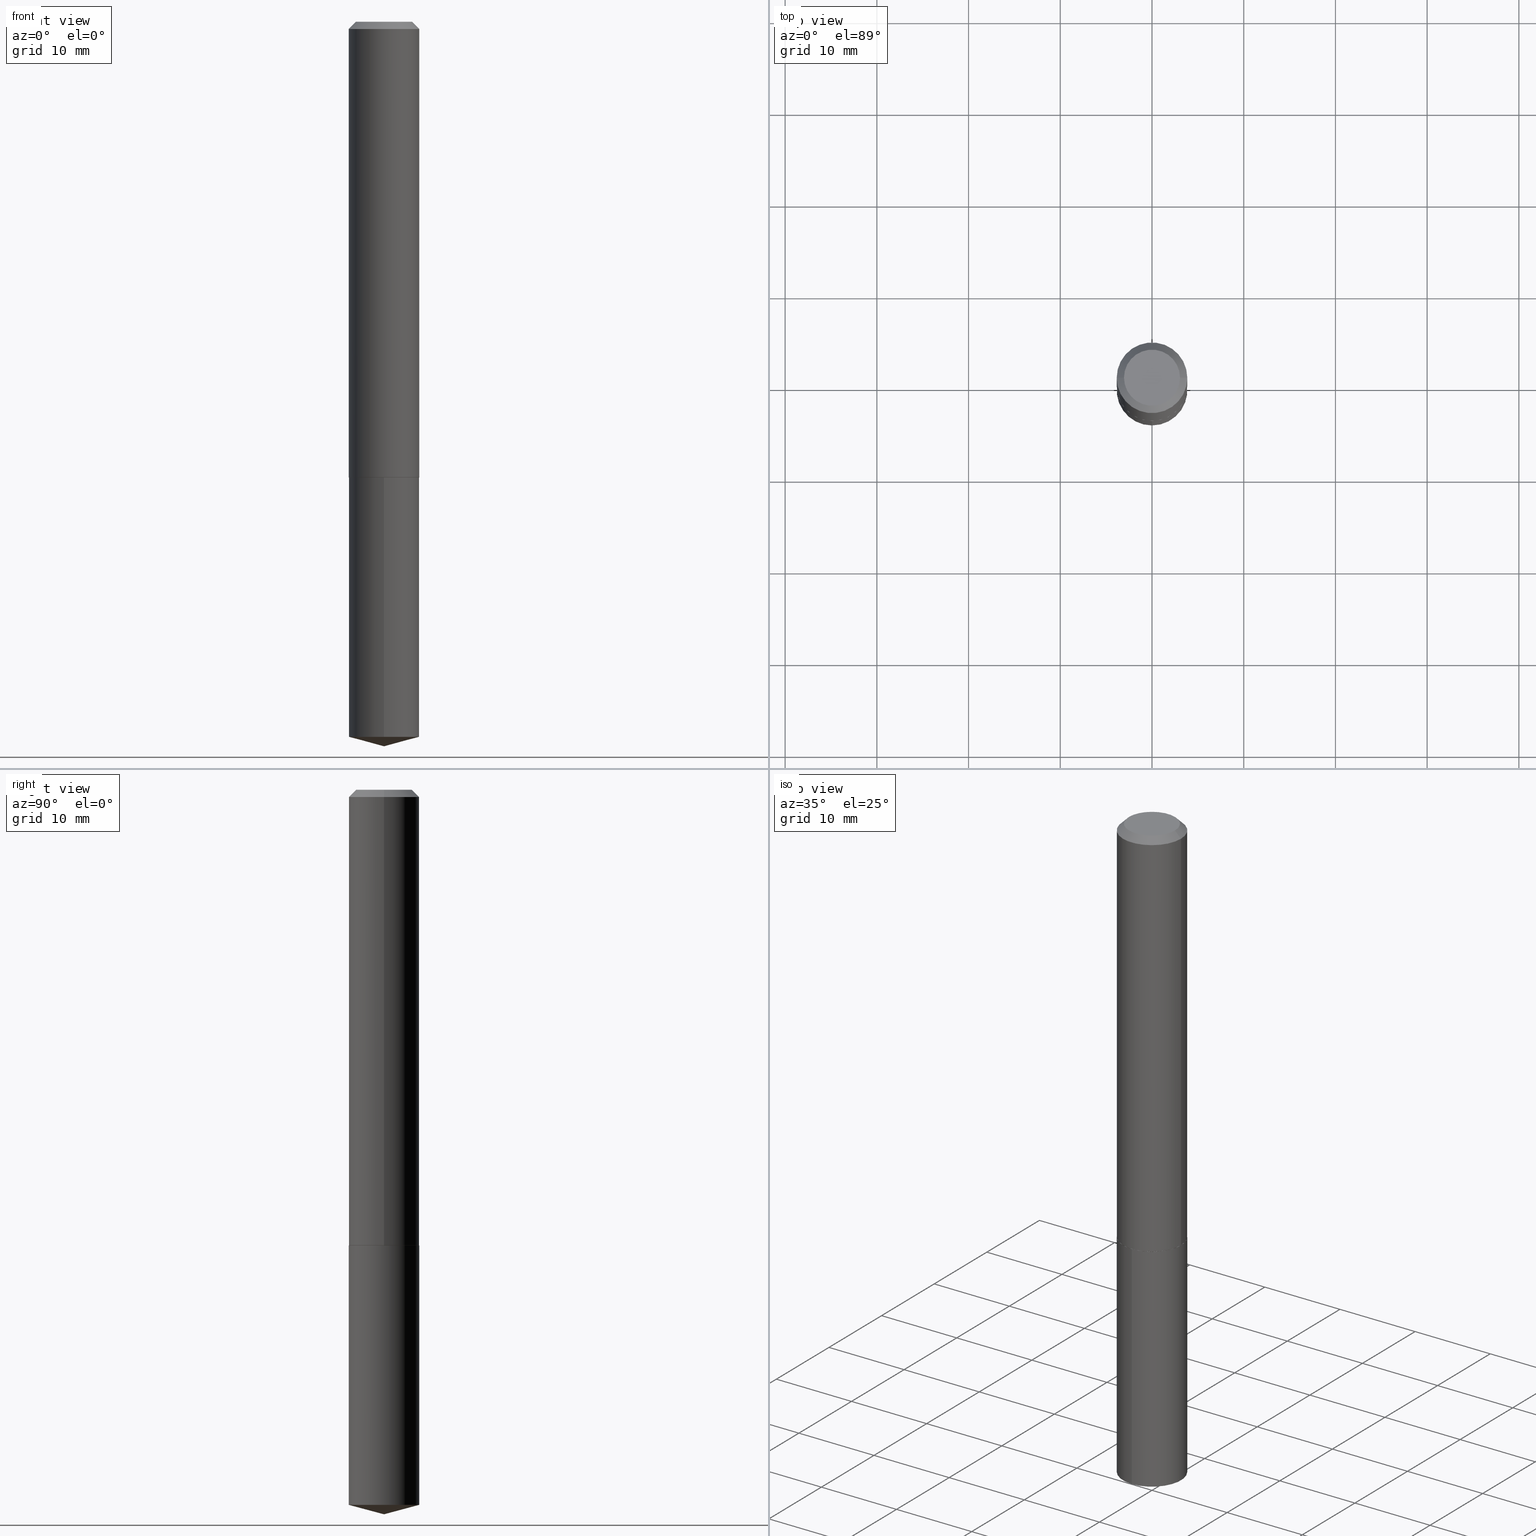
[diagram: canonical four-view strip — front | top / right | iso, engineering-drawing reading convention]
A machine part, canonical four-view strip (front | top / right | iso — engineering-drawing reading convention). The complete STEP part file that produces these views, byte-faithful:
ISO-10303-21;
HEADER;
FILE_DESCRIPTION (( 'STEP AP203' ),
    '1' );
FILE_NAME ('69012.STEP',
    '2024-04-23T14:18:51',
    ( '' ),
    ( '' ),
    'SwSTEP 2.0',
    'SolidWorks 2023',
    '' );
FILE_SCHEMA (( 'CONFIG_CONTROL_DESIGN' ));
ENDSEC;

DATA;
#1 = CARTESIAN_POINT ( 'NONE',  ( 7.642090019328604414E-31, -1.091087918388490513E-16, -0.03125000000000021511 ) ) ;
#2 = SECURITY_CLASSIFICATION ( '', '', #58 ) ;
#3 = CARTESIAN_POINT ( 'NONE',  ( 4.784804266181838428E-29, -6.831432387580498345E-15, -1.956600000000000117 ) ) ;
#4 = DIRECTION ( 'NONE',  ( 1.000000000000000000, -6.982962677686267499E-15, 0.000000000000000000 ) ) ;
#5 = DATE_AND_TIME ( #375, #22 ) ;
#6 = PERSON_AND_ORGANIZATION ( #118, #94 ) ;
#7 = CARTESIAN_POINT ( 'NONE',  ( 1.076827516044506507E-15, 0.1515499999999892211, -3.069592299887064168 ) ) ;
#8 = EDGE_LOOP ( 'NONE', ( #134, #126, #71 ) ) ;
#9 = CARTESIAN_POINT ( 'NONE',  ( -5.839929314523151101E-48, 8.337871319499049968E-34, 2.388061258337324511E-19 ) ) ;
#10 = DIRECTION ( 'NONE',  ( -2.445468806185136877E-29, 3.491481338843145188E-15, 1.000000000000000000 ) ) ;
#11 = CARTESIAN_POINT ( 'NONE',  ( 0.1515500000000001013, -1.058267993803354512E-15, 7.389845903718745173E-30 ) ) ;
#12 = ADVANCED_FACE ( 'NONE', ( #288 ), #204, .T. ) ;
#13 = LINE ( 'NONE', #11, #345 ) ;
#14 = CIRCLE ( 'NONE', #273, 0.1202999999999999764 ) ;
#15 = AXIS2_PLACEMENT_3D ( 'NONE', #98, #123, #188 ) ;
#16 = CARTESIAN_POINT ( 'NONE',  ( 1.076827516044506902E-15, 0.1515499999999931624, -1.956600000000000339 ) ) ;
#17 = APPROVAL_DATE_TIME ( #296, #23 ) ;
#18 = LINE ( 'NONE', #269, #386 ) ;
#19 = ADVANCED_FACE ( 'NONE', ( #351 ), #81, .F. ) ;
#20 = DIRECTION ( 'NONE',  ( -6.982962677686265133E-15, -1.000000000000000000, 3.510303681827617951E-15 ) ) ;
#21 = VECTOR ( 'NONE', #144, 39.37007874015748143 ) ;
#22 = LOCAL_TIME ( 10, 18, 51.00000000000000000, #38 ) ;
#23 = APPROVAL ( #84, 'UNSPECIFIED' ) ;
#24 = CARTESIAN_POINT ( 'NONE',  ( 4.784804266181837868E-29, -6.831432387580497556E-15, -1.956599999999999895 ) ) ;
#25 = DIRECTION ( 'NONE',  ( -2.445468806185136597E-29, 3.491481338843145583E-15, 1.000000000000000000 ) ) ;
#26 = DIRECTION ( 'NONE',  ( 0.7071067811865451302, -7.319954787623248157E-15, -0.7071067811865499042 ) ) ;
#27 = CIRCLE ( 'NONE', #190, 0.1515499999999999903 ) ;
#28 = DIRECTION ( 'NONE',  ( 1.000000000000000000, -6.982962677686266711E-15, 4.876187634201755611E-29 ) ) ;
#29 = PERSON_AND_ORGANIZATION_ROLE ( 'classification_officer' ) ;
#30 = DIRECTION ( 'NONE',  ( 1.000000000000000000, -6.982962677686263555E-15, 0.000000000000000000 ) ) ;
#31 = VERTEX_POINT ( 'NONE', #16 ) ;
#32 = DIRECTION ( 'NONE',  ( -0.7071067811861854180, 7.493145998869046229E-15, 0.7071067811869097275 ) ) ;
#33 = EDGE_CURVE ( 'NONE', #228, #31, #385, .T. ) ;
#34 = PERSON_AND_ORGANIZATION ( #118, #94 ) ;
#35 = AXIS2_PLACEMENT_3D ( 'NONE', #157, #68, #343 ) ;
#36 = APPROVAL_DATE_TIME ( #287, #64 ) ;
#37 = ORIENTED_EDGE ( 'NONE', *, *, #280, .T. ) ;
#38 = COORDINATED_UNIVERSAL_TIME_OFFSET ( 5, 0, .BEHIND. ) ;
#39 = APPROVAL_STATUS ( 'not_yet_approved' ) ;
#40 = ORIENTED_EDGE ( 'NONE', *, *, #156, .T. ) ;
#41 = ORIENTED_EDGE ( 'NONE', *, *, #170, .F. ) ;
#42 = UNCERTAINTY_MEASURE_WITH_UNIT (LENGTH_MEASURE( 1.000000000000000082E-05 ), #164, 'distance_accuracy_value', 'NONE');
#43 = AXIS2_PLACEMENT_3D ( 'NONE', #389, #233, #116 ) ;
#44 = AXIS2_PLACEMENT_3D ( 'NONE', #109, #376, #289 ) ;
#45 = VERTEX_POINT ( 'NONE', #117 ) ;
#46 = ORIENTED_EDGE ( 'NONE', *, *, #47, .T. ) ;
#47 = EDGE_CURVE ( 'NONE', #228, #95, #69, .T. ) ;
#48 = EDGE_LOOP ( 'NONE', ( #318, #281, #255, #168 ) ) ;
#49 = CLOSED_SHELL ( 'NONE', ( #176, #107, #125, #196, #189 ) ) ;
#50 = PLANE ( 'NONE',  #199 ) ;
#51 = COORDINATED_UNIVERSAL_TIME_OFFSET ( 5, 0, .BEHIND. ) ;
#52 = DIRECTION ( 'NONE',  ( -2.445415479178305919E-29, 3.491557706152111532E-15, 1.000000000000000000 ) ) ;
#53 = DIRECTION ( 'NONE',  ( 2.438088387897960049E-29, -3.491481338843145188E-15, -1.000000000000000000 ) ) ;
#54 = CARTESIAN_POINT ( 'NONE',  ( 1.076827516044479489E-15, 0.1515499999999931624, -1.956600000000000339 ) ) ;
#55 = CC_DESIGN_APPROVAL ( #73, ( #2 ) ) ;
#56 = DIRECTION ( 'NONE',  ( -2.445415479178305639E-29, 3.491557706152111532E-15, 1.000000000000000000 ) ) ;
#57 = ADVANCED_FACE ( 'NONE', ( #297 ), #258, .T. ) ;
#58 = SECURITY_CLASSIFICATION_LEVEL ( 'unclassified' ) ;
#59 = LINE ( 'NONE', #179, #216 ) ;
#60 = DIRECTION ( 'NONE',  ( -0.7071067811865451302, 2.468850131082231817E-15, -0.7071067811865499042 ) ) ;
#61 = CONICAL_SURFACE ( 'NONE', #250, 146.9311341562559505, 1.308996938995748760 ) ;
#62 = CC_DESIGN_APPROVAL ( #23, ( #132 ) ) ;
#63 = CARTESIAN_POINT ( 'NONE',  ( 0.1515500000000002123, -7.887954640714432536E-15, -1.956099999999999950 ) ) ;
#64 = APPROVAL ( #39, 'UNSPECIFIED' ) ;
#65 = ADVANCED_BREP_SHAPE_REPRESENTATION ( '69012', ( #276, #146, #149 ), #268 ) ;
#66 = FACE_OUTER_BOUND ( 'NONE', #140, .T. ) ;
#67 = ORIENTED_EDGE ( 'NONE', *, *, #265, .F. ) ;
#68 = DIRECTION ( 'NONE',  ( -2.445468806185136597E-29, 3.491481338843145583E-15, 1.000000000000000000 ) ) ;
#69 = CIRCLE ( 'NONE', #43, 0.1515499999999999625 ) ;
#70 = EDGE_CURVE ( 'NONE', #198, #31, #27, .T. ) ;
#71 = ORIENTED_EDGE ( 'NONE', *, *, #352, .F. ) ;
#72 = ORIENTED_EDGE ( 'NONE', *, *, #377, .T. ) ;
#73 = APPROVAL ( #191, 'UNSPECIFIED' ) ;
#74 = APPLICATION_PROTOCOL_DEFINITION ( 'international standard', 'config_control_design', 1994, #208 ) ;
#75 = ORIENTED_EDGE ( 'NONE', *, *, #322, .T. ) ;
#76 = CIRCLE ( 'NONE', #92, 0.1515500000000002123 ) ;
#77 = PERSON_AND_ORGANIZATION ( #118, #94 ) ;
#78 = CC_DESIGN_SECURITY_CLASSIFICATION ( #2, ( #132 ) ) ;
#79 = ORIENTED_EDGE ( 'NONE', *, *, #322, .F. ) ;
#80 = CARTESIAN_POINT ( 'NONE',  ( 0.1515500000000002123, -7.887954640714432536E-15, -1.956099999999999950 ) ) ;
#81 = PLANE ( 'NONE',  #155 ) ;
#82 = PERSON_AND_ORGANIZATION ( #118, #94 ) ;
#83 = CYLINDRICAL_SURFACE ( 'NONE', #294, 0.1515499999999999903 ) ;
#84 = APPROVAL_STATUS ( 'not_yet_approved' ) ;
#85 = DIRECTION ( 'NONE',  ( -6.982962677686265922E-15, -1.000000000000000000, 3.605210153301568306E-15 ) ) ;
#86 = CARTESIAN_POINT ( 'NONE',  ( 0.1202999999999999764, -9.870675862665198561E-16, 2.388061258401206644E-19 ) ) ;
#87 = AXIS2_PLACEMENT_3D ( 'NONE', #234, #151, #236 ) ;
#88 = FACE_OUTER_BOUND ( 'NONE', #8, .T. ) ;
#89 = CARTESIAN_POINT ( 'NONE',  ( -0.1510500000000005727, -5.755508358040753321E-15, -1.956600000000000117 ) ) ;
#90 = DIRECTION ( 'NONE',  ( -2.445468806185136597E-29, 3.491481338843145583E-15, 1.000000000000000000 ) ) ;
#91 = LINE ( 'NONE', #217, #361 ) ;
#92 = AXIS2_PLACEMENT_3D ( 'NONE', #364, #215, #124 ) ;
#93 = ORIENTED_EDGE ( 'NONE', *, *, #260, .T. ) ;
#94 = ORGANIZATION ( 'UNSPECIFIED', 'UNSPECIFIED', '' ) ;
#95 = VERTEX_POINT ( 'NONE', #115 ) ;
#96 = DIRECTION ( 'NONE',  ( 1.000000000000000000, -6.982962677686265922E-15, 4.876176775795935793E-29 ) ) ;
#97 = DIMENSIONAL_EXPONENTS ( 1.000000000000000000, 0.000000000000000000, 0.000000000000000000, 0.000000000000000000, 0.000000000000000000, 0.000000000000000000, 0.000000000000000000 ) ;
#98 = CARTESIAN_POINT ( 'NONE',  ( 4.783581531778745627E-29, -6.829686646911076052E-15, -1.956099999999999950 ) ) ;
#99 = ORIENTED_EDGE ( 'NONE', *, *, #135, .F. ) ;
#100 = VERTEX_POINT ( 'NONE', #299 ) ;
#101 = APPROVAL_DATE_TIME ( #5, #73 ) ;
#102 =( NAMED_UNIT ( * ) SI_UNIT ( $, .STERADIAN. ) SOLID_ANGLE_UNIT ( ) );
#103 = VERTEX_POINT ( 'NONE', #86 ) ;
#104 = ORIENTED_EDGE ( 'NONE', *, *, #70, .F. ) ;
#105 =( NAMED_UNIT ( * ) PLANE_ANGLE_UNIT ( ) SI_UNIT ( $, .RADIAN. ) );
#106 = DESIGN_CONTEXT ( 'detailed design', #208, 'design' ) ;
#107 = ADVANCED_FACE ( 'NONE', ( #88 ), #61, .T. ) ;
#108 = AXIS2_PLACEMENT_3D ( 'NONE', #329, #232, #357 ) ;
#109 = CARTESIAN_POINT ( 'NONE',  ( 7.506532864531928318E-29, -1.071750922913913919E-14, -3.069592299887063724 ) ) ;
#110 = EDGE_LOOP ( 'NONE', ( #317, #324, #72, #142 ) ) ;
#111 = DIRECTION ( 'NONE',  ( 1.000000000000000000, -6.982962677686271444E-15, 0.000000000000000000 ) ) ;
#112 = CC_DESIGN_DATE_AND_TIME_ASSIGNMENT ( #261, #382, ( #249 ) ) ;
#113 = CARTESIAN_POINT ( 'NONE',  ( -0.1515500000000001013, 1.076827516044432551E-15, -7.454646129281315317E-30 ) ) ;
#114 = CIRCLE ( 'NONE', #243, 0.1515500000000002123 ) ;
#115 = CARTESIAN_POINT ( 'NONE',  ( -1.058267993803278190E-15, -0.1515500000000106762, -3.069592299887063280 ) ) ;
#116 = DIRECTION ( 'NONE',  ( -6.982962677686265922E-15, -1.000000000000000000, 3.605210153301569095E-15 ) ) ;
#117 = CARTESIAN_POINT ( 'NONE',  ( -0.1515499999999999903, -2.392570203330529433E-15, -0.03125000000000021511 ) ) ;
#118 = PERSON ( 'UNSPECIFIED', 'UNSPECIFIED', 'UNSPECIFIED', ('UNSPECIFIED'), ('UNSPECIFIED'), ('UNSPECIFIED') ) ;
#119 = PERSON_AND_ORGANIZATION ( #118, #94 ) ;
#120 = CLOSED_SHELL ( 'NONE', ( #245, #238, #12, #235, #270, #163, #57, #19 ) ) ;
#121 = DIRECTION ( 'NONE',  ( -6.982962677686265922E-15, -1.000000000000000000, 3.605210153301568306E-15 ) ) ;
#122 = CIRCLE ( 'NONE', #387, 0.1202999999999999764 ) ;
#123 = DIRECTION ( 'NONE',  ( -2.445468806185136597E-29, 3.491481338843145583E-15, 1.000000000000000000 ) ) ;
#124 = DIRECTION ( 'NONE',  ( 1.000000000000000000, -6.982962677686271444E-15, 0.000000000000000000 ) ) ;
#125 = ADVANCED_FACE ( 'NONE', ( #211 ), #285, .T. ) ;
#126 = ORIENTED_EDGE ( 'NONE', *, *, #331, .T. ) ;
#127 = ORIENTED_EDGE ( 'NONE', *, *, #348, .F. ) ;
#128 = PERSON_AND_ORGANIZATION_ROLE ( 'design_owner' ) ;
#129 = FACE_OUTER_BOUND ( 'NONE', #110, .T. ) ;
#130 = CONICAL_SURFACE ( 'NONE', #313, 0.1515499999999999903, 0.7853981633974449483 ) ;
#131 = EDGE_LOOP ( 'NONE', ( #159, #293 ) ) ;
#132 = PRODUCT_DEFINITION_FORMATION_WITH_SPECIFIED_SOURCE ( 'ANY', '', #366, .NOT_KNOWN. ) ;
#133 = CARTESIAN_POINT ( 'NONE',  ( -1.058267993803305800E-15, -0.1515500000000068181, -1.956599999999999229 ) ) ;
#134 = ORIENTED_EDGE ( 'NONE', *, *, #260, .F. ) ;
#135 = EDGE_CURVE ( 'NONE', #195, #45, #209, .T. ) ;
#136 = EDGE_LOOP ( 'NONE', ( #225, #93, #169 ) ) ;
#137 = ORIENTED_EDGE ( 'NONE', *, *, #290, .T. ) ;
#138 = CC_DESIGN_PERSON_AND_ORGANIZATION_ASSIGNMENT ( #6, #128, ( #366 ) ) ;
#139 = EDGE_LOOP ( 'NONE', ( #370, #379, #75, #350 ) ) ;
#140 = EDGE_LOOP ( 'NONE', ( #242, #219, #79, #185 ) ) ;
#141 = VECTOR ( 'NONE', #371, 39.37007874015748854 ) ;
#142 = ORIENTED_EDGE ( 'NONE', *, *, #201, .F. ) ;
#143 = EDGE_CURVE ( 'NONE', #254, #195, #114, .T. ) ;
#144 = DIRECTION ( 'NONE',  ( -2.445415479178305639E-29, 3.491557706152111532E-15, 1.000000000000000000 ) ) ;
#145 = PERSON_AND_ORGANIZATION ( #118, #94 ) ;
#146 = MANIFOLD_SOLID_BREP ( 'Body-Move/Copy2[2]', #120 ) ;
#147 = CC_DESIGN_PERSON_AND_ORGANIZATION_ASSIGNMENT ( #284, #29, ( #2 ) ) ;
#148 = CARTESIAN_POINT ( 'NONE',  ( -0.1515500000000002123, -5.752859130866642909E-15, -1.956099999999999950 ) ) ;
#149 = AXIS2_PLACEMENT_3D ( 'NONE', #390, #154, #274 ) ;
#150 = CARTESIAN_POINT ( 'NONE',  ( -8.867036440468791964E-28, 1.266036084596146905E-13, 36.25987874015748247 ) ) ;
#151 = DIRECTION ( 'NONE',  ( 2.445468806185136597E-29, -3.491481338843145583E-15, -1.000000000000000000 ) ) ;
#152 = APPLICATION_PROTOCOL_DEFINITION ( 'international standard', 'config_control_design', 1994, #311 ) ;
#153 = CARTESIAN_POINT ( 'NONE',  ( 7.642090019328604414E-31, -1.091087918388490513E-16, -0.03125000000000021511 ) ) ;
#154 = DIRECTION ( 'NONE',  ( 0.000000000000000000, 0.000000000000000000, 1.000000000000000000 ) ) ;
#155 = AXIS2_PLACEMENT_3D ( 'NONE', #202, #53, #358 ) ;
#156 = EDGE_CURVE ( 'NONE', #95, #198, #18, .T. ) ;
#157 = CARTESIAN_POINT ( 'NONE',  ( 7.642090019328604414E-31, -1.091087918388490513E-16, -0.03125000000000021511 ) ) ;
#158 = CARTESIAN_POINT ( 'NONE',  ( 4.784804266181837868E-29, -6.831432387580497556E-15, -1.956599999999999895 ) ) ;
#159 = ORIENTED_EDGE ( 'NONE', *, *, #70, .T. ) ;
#160 = DIRECTION ( 'NONE',  ( -2.438088387897960049E-29, 3.491481338843145188E-15, 1.000000000000000000 ) ) ;
#161 = AXIS2_PLACEMENT_3D ( 'NONE', #335, #160, #96 ) ;
#162 = APPROVAL_ROLE ( '' ) ;
#163 = ADVANCED_FACE ( 'NONE', ( #384 ), #178, .T. ) ;
#164 =( CONVERSION_BASED_UNIT ( 'INCH', #192 ) LENGTH_UNIT ( ) NAMED_UNIT ( #97 ) );
#165 = ORIENTED_EDGE ( 'NONE', *, *, #231, .T. ) ;
#166 = CC_DESIGN_APPROVAL ( #64, ( #249 ) ) ;
#167 = ORIENTED_EDGE ( 'NONE', *, *, #352, .T. ) ;
#168 = ORIENTED_EDGE ( 'NONE', *, *, #377, .F. ) ;
#169 = ORIENTED_EDGE ( 'NONE', *, *, #47, .F. ) ;
#170 = EDGE_CURVE ( 'NONE', #100, #323, #181, .T. ) ;
#171 = VECTOR ( 'NONE', #248, 39.37007874015748143 ) ;
#172 = CARTESIAN_POINT ( 'NONE',  ( 4.784804266181837868E-29, -6.831432387580497556E-15, -1.956599999999999895 ) ) ;
#173 = CALENDAR_DATE ( 2024, 23, 4 ) ;
#174 = DIRECTION ( 'NONE',  ( -6.982962677686265133E-15, -1.000000000000000000, 3.510303681827617951E-15 ) ) ;
#175 = AXIS2_PLACEMENT_3D ( 'NONE', #153, #182, #4 ) ;
#176 = ADVANCED_FACE ( 'NONE', ( #388 ), #83, .T. ) ;
#177 = DIRECTION ( 'NONE',  ( -2.445415479178305919E-29, 3.491557706152111532E-15, 1.000000000000000000 ) ) ;
#178 = CYLINDRICAL_SURFACE ( 'NONE', #108, 0.1515500000000001013 ) ;
#179 = CARTESIAN_POINT ( 'NONE',  ( 0.1515499999999999903, -1.148817263401124587E-15, -0.03125000000000021511 ) ) ;
#180 = CC_DESIGN_PERSON_AND_ORGANIZATION_ASSIGNMENT ( #77, #221, ( #249 ) ) ;
#181 = CIRCLE ( 'NONE', #337, 0.1510500000000005727 ) ;
#182 = DIRECTION ( 'NONE',  ( -2.445468806185136597E-29, 3.491481338843145583E-15, 1.000000000000000000 ) ) ;
#183 = ORIENTED_EDGE ( 'NONE', *, *, #207, .F. ) ;
#184 = LINE ( 'NONE', #365, #141 ) ;
#185 = ORIENTED_EDGE ( 'NONE', *, *, #373, .F. ) ;
#186 = CALENDAR_DATE ( 2024, 23, 4 ) ;
#187 = DIRECTION ( 'NONE',  ( 2.445468806185136597E-29, -3.491481338843145583E-15, -1.000000000000000000 ) ) ;
#188 = DIRECTION ( 'NONE',  ( 1.000000000000000000, -6.982962677686271444E-15, 0.000000000000000000 ) ) ;
#189 = ADVANCED_FACE ( 'NONE', ( #325 ), #50, .F. ) ;
#190 = AXIS2_PLACEMENT_3D ( 'NONE', #383, #52, #360 ) ;
#191 = APPROVAL_STATUS ( 'not_yet_approved' ) ;
#192 = LENGTH_MEASURE_WITH_UNIT ( LENGTH_MEASURE( 0.02539999999999999897 ), #253 );
#193 = VERTEX_POINT ( 'NONE', #327 ) ;
#194 = COORDINATED_UNIVERSAL_TIME_OFFSET ( 5, 0, .BEHIND. ) ;
#195 = VERTEX_POINT ( 'NONE', #148 ) ;
#196 = ADVANCED_FACE ( 'NONE', ( #266 ), #328, .T. ) ;
#197 = CALENDAR_DATE ( 2024, 23, 4 ) ;
#198 = VERTEX_POINT ( 'NONE', #133 ) ;
#199 = AXIS2_PLACEMENT_3D ( 'NONE', #172, #206, #295 ) ;
#200 = LOCAL_TIME ( 10, 18, 51.00000000000000000, #292 ) ;
#201 = EDGE_CURVE ( 'NONE', #195, #254, #76, .T. ) ;
#202 = CARTESIAN_POINT ( 'NONE',  ( -2.919964657261575550E-48, 4.168935659749524984E-34, 1.194030629168662255E-19 ) ) ;
#203 = DIRECTION ( 'NONE',  ( -2.445415479178305919E-29, 3.491557706152111532E-15, 1.000000000000000000 ) ) ;
#204 = CONICAL_SURFACE ( 'NONE', #306, 0.1515500000000002123, 0.7853981633969361331 ) ;
#205 = APPROVAL_ROLE ( '' ) ;
#206 = DIRECTION ( 'NONE',  ( 2.445415479178305919E-29, -3.491557706152111532E-15, -1.000000000000000000 ) ) ;
#207 = EDGE_CURVE ( 'NONE', #31, #198, #330, .T. ) ;
#208 = APPLICATION_CONTEXT ( 'configuration controlled 3d designs of mechanical parts and assemblies' ) ;
#209 = LINE ( 'NONE', #113, #356 ) ;
#210 = PRODUCT_RELATED_PRODUCT_CATEGORY ( 'detail', '', ( #366 ) ) ;
#211 = FACE_OUTER_BOUND ( 'NONE', #136, .T. ) ;
#212 = LINE ( 'NONE', #333, #314 ) ;
#213 = EDGE_CURVE ( 'NONE', #323, #100, #319, .T. ) ;
#214 = CARTESIAN_POINT ( 'NONE',  ( 0.1515499999999999903, -1.167376785642202627E-15, -0.03125000000000021511 ) ) ;
#215 = DIRECTION ( 'NONE',  ( -2.445468806185136597E-29, 3.491481338843145583E-15, 1.000000000000000000 ) ) ;
#216 = VECTOR ( 'NONE', #26, 39.37007874015748143 ) ;
#217 = CARTESIAN_POINT ( 'NONE',  ( -0.1515499999999999903, 9.491592019645046225E-16, -0.03125000000000021511 ) ) ;
#218 = EDGE_LOOP ( 'NONE', ( #167, #334, #104, #346 ) ) ;
#219 = ORIENTED_EDGE ( 'NONE', *, *, #135, .T. ) ;
#220 = LINE ( 'NONE', #283, #320 ) ;
#221 = PERSON_AND_ORGANIZATION_ROLE ( 'creator' ) ;
#222 = CC_DESIGN_DATE_AND_TIME_ASSIGNMENT ( #342, #312, ( #2 ) ) ;
#223 = AXIS2_PLACEMENT_3D ( 'NONE', #158, #275, #241 ) ;
#224 = EDGE_LOOP ( 'NONE', ( #127, #67, #37, #165 ) ) ;
#225 = ORIENTED_EDGE ( 'NONE', *, *, #331, .F. ) ;
#226 = EDGE_LOOP ( 'NONE', ( #41, #321 ) ) ;
#227 = PERSON_AND_ORGANIZATION ( #118, #94 ) ;
#228 = VERTEX_POINT ( 'NONE', #7 ) ;
#229 = APPROVAL_PERSON_ORGANIZATION ( #227, #64, #252 ) ;
#230 = DIRECTION ( 'NONE',  ( 1.000000000000000000, -6.982962677686271444E-15, 0.000000000000000000 ) ) ;
#231 = EDGE_CURVE ( 'NONE', #45, #347, #367, .T. ) ;
#232 = DIRECTION ( 'NONE',  ( -2.445468806185136597E-29, 3.491481338843145583E-15, 1.000000000000000000 ) ) ;
#233 = DIRECTION ( 'NONE',  ( -2.445415479178305919E-29, 3.491557706152111532E-15, 1.000000000000000000 ) ) ;
#234 = CARTESIAN_POINT ( 'NONE',  ( 7.642090019328604414E-31, -1.091087918388490513E-16, -0.03125000000000021511 ) ) ;
#235 = ADVANCED_FACE ( 'NONE', ( #369 ), #272, .F. ) ;
#236 = DIRECTION ( 'NONE',  ( -1.000000000000000000, 6.982962677686267499E-15, 0.000000000000000000 ) ) ;
#237 = PERSON_AND_ORGANIZATION_ROLE ( 'design_supplier' ) ;
#238 = ADVANCED_FACE ( 'NONE', ( #66 ), #277, .T. ) ;
#239 = DIRECTION ( 'NONE',  ( -2.445468806185136597E-29, 3.491481338843145583E-15, 1.000000000000000000 ) ) ;
#240 = DIRECTION ( 'NONE',  ( 6.863315791527694259E-15, 0.9659258262890696445, 0.2588190451025158545 ) ) ;
#241 = DIRECTION ( 'NONE',  ( -6.982962677686265922E-15, -1.000000000000000000, 3.605210153301568306E-15 ) ) ;
#242 = ORIENTED_EDGE ( 'NONE', *, *, #143, .T. ) ;
#243 = AXIS2_PLACEMENT_3D ( 'NONE', #263, #25, #111 ) ;
#244 = CARTESIAN_POINT ( 'NONE',  ( 0.000000000000000000, 0.000000000000000000, 0.000000000000000000 ) ) ;
#245 = ADVANCED_FACE ( 'NONE', ( #247 ), #130, .T. ) ;
#246 = ORIENTED_EDGE ( 'NONE', *, *, #373, .T. ) ;
#247 = FACE_OUTER_BOUND ( 'NONE', #139, .T. ) ;
#248 = DIRECTION ( 'NONE',  ( 0.7071067811861854180, -2.468850131078463428E-15, 0.7071067811869097275 ) ) ;
#249 = PRODUCT_DEFINITION ( 'UNKNOWN', '', #132, #106 ) ;
#250 = AXIS2_PLACEMENT_3D ( 'NONE', #262, #177, #20 ) ;
#251 = LOCAL_TIME ( 10, 18, 51.00000000000000000, #278 ) ;
#252 = APPROVAL_ROLE ( '' ) ;
#253 =( LENGTH_UNIT ( ) NAMED_UNIT ( * ) SI_UNIT ( $, .METRE. ) );
#254 = VERTEX_POINT ( 'NONE', #63 ) ;
#255 = ORIENTED_EDGE ( 'NONE', *, *, #143, .F. ) ;
#256 = LINE ( 'NONE', #80, #171 ) ;
#257 = CARTESIAN_POINT ( 'NONE',  ( 4.783581531778745627E-29, -6.829686646911076052E-15, -1.956099999999999950 ) ) ;
#258 = CONICAL_SURFACE ( 'NONE', #87, 0.1515499999999999903, 0.7853981633974449483 ) ;
#259 = CIRCLE ( 'NONE', #44, 0.1515499999999999625 ) ;
#260 = EDGE_CURVE ( 'NONE', #193, #95, #184, .T. ) ;
#261 = DATE_AND_TIME ( #354, #200 ) ;
#262 = CARTESIAN_POINT ( 'NONE',  ( -8.867036440468791964E-28, 1.266036084596146905E-13, 36.25987874015748247 ) ) ;
#263 = CARTESIAN_POINT ( 'NONE',  ( 4.783581531778745627E-29, -6.829686646911076052E-15, -1.956099999999999950 ) ) ;
#264 = PERSON_AND_ORGANIZATION_ROLE ( 'creator' ) ;
#265 = EDGE_CURVE ( 'NONE', #316, #103, #14, .T. ) ;
#266 = FACE_OUTER_BOUND ( 'NONE', #309, .T. ) ;
#267 = AXIS2_PLACEMENT_3D ( 'NONE', #341, #307, #121 ) ;
#268 =( GEOMETRIC_REPRESENTATION_CONTEXT ( 3 ) GLOBAL_UNCERTAINTY_ASSIGNED_CONTEXT ( ( #42 ) ) GLOBAL_UNIT_ASSIGNED_CONTEXT ( ( #164, #105, #102 ) ) REPRESENTATION_CONTEXT ( 'NONE', 'WORKASPACE' ) );
#269 = CARTESIAN_POINT ( 'NONE',  ( -1.058267993803305800E-15, -0.1515500000000068181, -1.956599999999999229 ) ) ;
#270 = ADVANCED_FACE ( 'NONE', ( #129 ), #338, .T. ) ;
#271 = MECHANICAL_CONTEXT ( 'NONE', #311, 'mechanical' ) ;
#272 = PLANE ( 'NONE',  #161 ) ;
#273 = AXIS2_PLACEMENT_3D ( 'NONE', #308, #239, #279 ) ;
#274 = DIRECTION ( 'NONE',  ( 1.000000000000000000, 0.000000000000000000, 0.000000000000000000 ) ) ;
#275 = DIRECTION ( 'NONE',  ( -2.445415479178305919E-29, 3.491557706152111532E-15, 1.000000000000000000 ) ) ;
#276 = MANIFOLD_SOLID_BREP ( 'Body-Move/Copy2[1]', #49 ) ;
#277 = CYLINDRICAL_SURFACE ( 'NONE', #380, 0.1515500000000001013 ) ;
#278 = COORDINATED_UNIVERSAL_TIME_OFFSET ( 5, 0, .BEHIND. ) ;
#279 = DIRECTION ( 'NONE',  ( 1.000000000000000000, -6.982962677686266711E-15, 4.876187634201755611E-29 ) ) ;
#280 = EDGE_CURVE ( 'NONE', #316, #45, #91, .T. ) ;
#281 = ORIENTED_EDGE ( 'NONE', *, *, #304, .T. ) ;
#282 = LOCAL_TIME ( 10, 18, 51.00000000000000000, #51 ) ;
#283 = CARTESIAN_POINT ( 'NONE',  ( -0.1515500000000002123, -5.752859130866642909E-15, -1.956099999999999950 ) ) ;
#284 = PERSON_AND_ORGANIZATION ( #118, #94 ) ;
#285 = CONICAL_SURFACE ( 'NONE', #344, 146.9311341562559505, 1.308996938995748760 ) ;
#286 = ORIENTED_EDGE ( 'NONE', *, *, #231, .F. ) ;
#287 = DATE_AND_TIME ( #197, #368 ) ;
#288 = FACE_OUTER_BOUND ( 'NONE', #48, .T. ) ;
#289 = DIRECTION ( 'NONE',  ( -6.982962677686265922E-15, -1.000000000000000000, 3.605210153301569095E-15 ) ) ;
#290 = EDGE_CURVE ( 'NONE', #103, #316, #122, .T. ) ;
#291 = ORIENTED_EDGE ( 'NONE', *, *, #33, .F. ) ;
#292 = COORDINATED_UNIVERSAL_TIME_OFFSET ( 5, 0, .BEHIND. ) ;
#293 = ORIENTED_EDGE ( 'NONE', *, *, #207, .T. ) ;
#294 = AXIS2_PLACEMENT_3D ( 'NONE', #24, #203, #85 ) ;
#295 = DIRECTION ( 'NONE',  ( 6.982962677686265922E-15, 1.000000000000000000, -3.491557706152111532E-15 ) ) ;
#296 = DATE_AND_TIME ( #173, #282 ) ;
#297 = FACE_OUTER_BOUND ( 'NONE', #224, .T. ) ;
#298 = CC_DESIGN_PERSON_AND_ORGANIZATION_ASSIGNMENT ( #119, #237, ( #132 ) ) ;
#299 = CARTESIAN_POINT ( 'NONE',  ( 0.1510500000000005727, -7.886208900045013399E-15, -1.956600000000000117 ) ) ;
#300 = AXIS2_PLACEMENT_3D ( 'NONE', #3, #90, #30 ) ;
#301 = CIRCLE ( 'NONE', #35, 0.1515499999999999903 ) ;
#302 = DIRECTION ( 'NONE',  ( 1.000000000000000000, -6.982962677686263555E-15, 0.000000000000000000 ) ) ;
#303 = CARTESIAN_POINT ( 'NONE',  ( 4.784804266181838428E-29, -6.831432387580498345E-15, -1.956600000000000117 ) ) ;
#304 = EDGE_CURVE ( 'NONE', #323, #195, #220, .T. ) ;
#305 = DIRECTION ( 'NONE',  ( -2.445468806185136597E-29, 3.491481338843145583E-15, 1.000000000000000000 ) ) ;
#306 = AXIS2_PLACEMENT_3D ( 'NONE', #257, #381, #230 ) ;
#307 = DIRECTION ( 'NONE',  ( -2.445415479178305919E-29, 3.491557706152111532E-15, 1.000000000000000000 ) ) ;
#308 = CARTESIAN_POINT ( 'NONE',  ( -5.839929314523151101E-48, 8.337871319499049968E-34, 2.388061258337324511E-19 ) ) ;
#309 = EDGE_LOOP ( 'NONE', ( #291, #46, #40, #183 ) ) ;
#310 = CARTESIAN_POINT ( 'NONE',  ( -0.1202999999999999764, 8.946048060450810583E-16, 2.388061258276670717E-19 ) ) ;
#311 = APPLICATION_CONTEXT ( 'configuration controlled 3d designs of mechanical parts and assemblies' ) ;
#312 = DATE_TIME_ROLE ( 'classification_date' ) ;
#313 = AXIS2_PLACEMENT_3D ( 'NONE', #1, #187, #339 ) ;
#314 = VECTOR ( 'NONE', #240, 39.37007874015748854 ) ;
#315 = DIRECTION ( 'NONE',  ( 1.000000000000000000, -6.982962677686267499E-15, 4.876176775795935232E-29 ) ) ;
#316 = VERTEX_POINT ( 'NONE', #310 ) ;
#317 = ORIENTED_EDGE ( 'NONE', *, *, #304, .F. ) ;
#318 = ORIENTED_EDGE ( 'NONE', *, *, #170, .T. ) ;
#319 = CIRCLE ( 'NONE', #300, 0.1510500000000005727 ) ;
#320 = VECTOR ( 'NONE', #32, 39.37007874015748143 ) ;
#321 = ORIENTED_EDGE ( 'NONE', *, *, #213, .F. ) ;
#322 = EDGE_CURVE ( 'NONE', #347, #45, #301, .T. ) ;
#323 = VERTEX_POINT ( 'NONE', #89 ) ;
#324 = ORIENTED_EDGE ( 'NONE', *, *, #213, .T. ) ;
#325 = FACE_OUTER_BOUND ( 'NONE', #131, .T. ) ;
#326 = APPROVAL_PERSON_ORGANIZATION ( #34, #73, #162 ) ;
#327 = CARTESIAN_POINT ( 'NONE',  ( 7.605731223340367812E-29, -1.085944277767429911E-14, -3.110199999999999854 ) ) ;
#328 = CYLINDRICAL_SURFACE ( 'NONE', #267, 0.1515499999999999903 ) ;
#329 = CARTESIAN_POINT ( 'NONE',  ( 0.000000000000000000, 0.000000000000000000, 0.000000000000000000 ) ) ;
#330 = CIRCLE ( 'NONE', #223, 0.1515499999999999903 ) ;
#331 = EDGE_CURVE ( 'NONE', #193, #228, #212, .T. ) ;
#332 = DIRECTION ( 'NONE',  ( -2.445415479178305919E-29, 3.491557706152111532E-15, 1.000000000000000000 ) ) ;
#333 = CARTESIAN_POINT ( 'NONE',  ( 7.605941732454133182E-29, -1.085914393712085339E-14, -3.110199999999999854 ) ) ;
#334 = ORIENTED_EDGE ( 'NONE', *, *, #33, .T. ) ;
#335 = CARTESIAN_POINT ( 'NONE',  ( 4.784804266181838428E-29, -6.831432387580498345E-15, -1.956600000000000117 ) ) ;
#336 = ORIENTED_EDGE ( 'NONE', *, *, #201, .T. ) ;
#337 = AXIS2_PLACEMENT_3D ( 'NONE', #303, #353, #302 ) ;
#338 = CONICAL_SURFACE ( 'NONE', #15, 0.1515500000000002123, 0.7853981633969361331 ) ;
#339 = DIRECTION ( 'NONE',  ( -1.000000000000000000, 6.982962677686267499E-15, 0.000000000000000000 ) ) ;
#340 = EDGE_LOOP ( 'NONE', ( #99, #336, #246, #286 ) ) ;
#341 = CARTESIAN_POINT ( 'NONE',  ( 4.784804266181837868E-29, -6.831432387580497556E-15, -1.956599999999999895 ) ) ;
#342 = DATE_AND_TIME ( #186, #251 ) ;
#343 = DIRECTION ( 'NONE',  ( 1.000000000000000000, -6.982962677686267499E-15, 0.000000000000000000 ) ) ;
#344 = AXIS2_PLACEMENT_3D ( 'NONE', #150, #332, #174 ) ;
#345 = VECTOR ( 'NONE', #10, 39.37007874015748143 ) ;
#346 = ORIENTED_EDGE ( 'NONE', *, *, #156, .F. ) ;
#347 = VERTEX_POINT ( 'NONE', #214 ) ;
#348 = EDGE_CURVE ( 'NONE', #103, #347, #59, .T. ) ;
#349 = APPROVAL_PERSON_ORGANIZATION ( #82, #23, #205 ) ;
#350 = ORIENTED_EDGE ( 'NONE', *, *, #280, .F. ) ;
#351 = FACE_OUTER_BOUND ( 'NONE', #378, .T. ) ;
#352 = EDGE_CURVE ( 'NONE', #95, #228, #259, .T. ) ;
#353 = DIRECTION ( 'NONE',  ( -2.445468806185136597E-29, 3.491481338843145583E-15, 1.000000000000000000 ) ) ;
#354 = CALENDAR_DATE ( 2024, 23, 4 ) ;
#355 = DIRECTION ( 'NONE',  ( -2.445468806185136877E-29, 3.491481338843145188E-15, 1.000000000000000000 ) ) ;
#356 = VECTOR ( 'NONE', #355, 39.37007874015748143 ) ;
#357 = DIRECTION ( 'NONE',  ( 1.000000000000000000, -6.982962677686267499E-15, 4.876176775795935232E-29 ) ) ;
#358 = DIRECTION ( 'NONE',  ( -1.000000000000000000, 6.982962677686265922E-15, -4.876176775795935793E-29 ) ) ;
#359 = PRODUCT_DEFINITION_SHAPE ( 'NONE', 'NONE',  #249 ) ;
#360 = DIRECTION ( 'NONE',  ( -6.982962677686265922E-15, -1.000000000000000000, 3.605210153301568306E-15 ) ) ;
#361 = VECTOR ( 'NONE', #60, 39.37007874015748143 ) ;
#362 = CC_DESIGN_PERSON_AND_ORGANIZATION_ASSIGNMENT ( #145, #264, ( #132 ) ) ;
#363 = DIRECTION ( 'NONE',  ( -2.445468806185136597E-29, 3.491481338843145583E-15, 1.000000000000000000 ) ) ;
#364 = CARTESIAN_POINT ( 'NONE',  ( 4.783581531778745627E-29, -6.829686646911076052E-15, -1.956099999999999950 ) ) ;
#365 = CARTESIAN_POINT ( 'NONE',  ( 7.605731223340367812E-29, -1.085944277767429911E-14, -3.110199999999999854 ) ) ;
#366 = PRODUCT ( '69012', '69012', '', ( #271 ) ) ;
#367 = CIRCLE ( 'NONE', #175, 0.1515499999999999903 ) ;
#368 = LOCAL_TIME ( 10, 18, 51.00000000000000000, #194 ) ;
#369 = FACE_OUTER_BOUND ( 'NONE', #226, .T. ) ;
#370 = ORIENTED_EDGE ( 'NONE', *, *, #290, .F. ) ;
#371 = DIRECTION ( 'NONE',  ( -6.745023994389839133E-15, -0.9659258262890676461, 0.2588190451025225713 ) ) ;
#372 = SHAPE_DEFINITION_REPRESENTATION ( #359, #65 ) ;
#373 = EDGE_CURVE ( 'NONE', #254, #347, #13, .T. ) ;
#374 = ORIENTED_EDGE ( 'NONE', *, *, #265, .T. ) ;
#375 = CALENDAR_DATE ( 2024, 23, 4 ) ;
#376 = DIRECTION ( 'NONE',  ( -2.445415479178305919E-29, 3.491557706152111532E-15, 1.000000000000000000 ) ) ;
#377 = EDGE_CURVE ( 'NONE', #100, #254, #256, .T. ) ;
#378 = EDGE_LOOP ( 'NONE', ( #374, #137 ) ) ;
#379 = ORIENTED_EDGE ( 'NONE', *, *, #348, .T. ) ;
#380 = AXIS2_PLACEMENT_3D ( 'NONE', #244, #305, #315 ) ;
#381 = DIRECTION ( 'NONE',  ( -2.445468806185136597E-29, 3.491481338843145583E-15, 1.000000000000000000 ) ) ;
#382 = DATE_TIME_ROLE ( 'creation_date' ) ;
#383 = CARTESIAN_POINT ( 'NONE',  ( 4.784804266181837868E-29, -6.831432387580497556E-15, -1.956599999999999895 ) ) ;
#384 = FACE_OUTER_BOUND ( 'NONE', #340, .T. ) ;
#385 = LINE ( 'NONE', #54, #21 ) ;
#386 = VECTOR ( 'NONE', #56, 39.37007874015748143 ) ;
#387 = AXIS2_PLACEMENT_3D ( 'NONE', #9, #363, #28 ) ;
#388 = FACE_OUTER_BOUND ( 'NONE', #218, .T. ) ;
#389 = CARTESIAN_POINT ( 'NONE',  ( 7.506532864531928318E-29, -1.071750922913913919E-14, -3.069592299887063724 ) ) ;
#390 = CARTESIAN_POINT ( 'NONE',  ( 0.000000000000000000, 0.000000000000000000, 0.000000000000000000 ) ) ;
ENDSEC;
END-ISO-10303-21;
